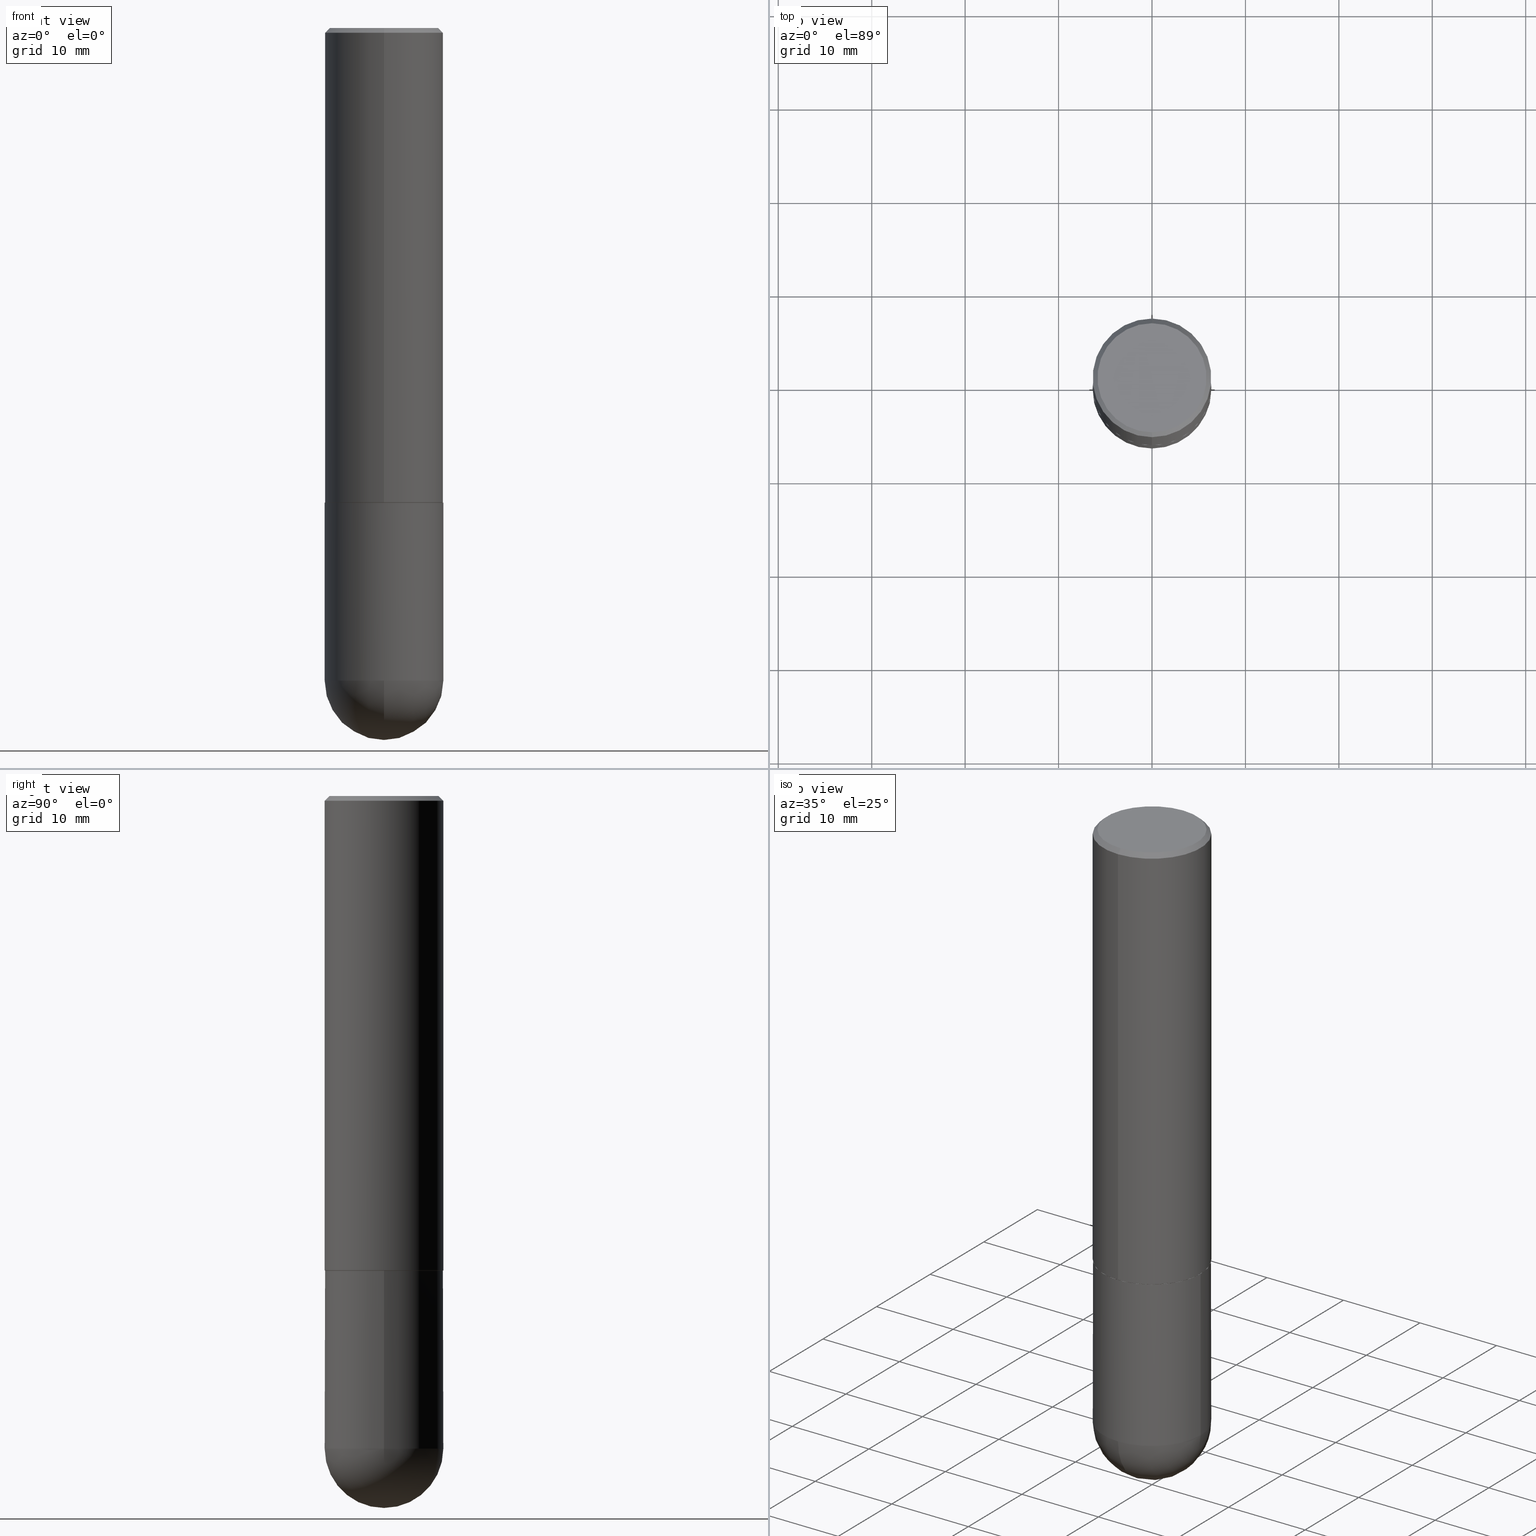
[diagram: canonical four-view strip — front | top / right | iso, engineering-drawing reading convention]
A machine part, canonical four-view strip (front | top / right | iso — engineering-drawing reading convention). The complete STEP part file that produces these views, byte-faithful:
ISO-10303-21;
HEADER;
FILE_DESCRIPTION (( 'STEP AP203' ),
    '1' );
FILE_NAME ('36543.STEP',
    '2024-02-21T19:01:13',
    ( '' ),
    ( '' ),
    'SwSTEP 2.0',
    'SolidWorks 2023',
    '' );
FILE_SCHEMA (( 'CONFIG_CONTROL_DESIGN' ));
ENDSEC;

DATA;
#1 = DIRECTION ( 'NONE',  ( -2.446170106863370175E-29, 3.490477036356359170E-15, 1.000000000000000000 ) ) ;
#2 = AXIS2_PLACEMENT_3D ( 'NONE', #264, #165, #234 ) ;
#3 = CARTESIAN_POINT ( 'NONE',  ( -0.2500000000000000000, -6.515911340352222809E-15, -2.750000000000000444 ) ) ;
#4 = DIRECTION ( 'NONE',  ( -6.982962677686266711E-15, -1.000000000000000000, 3.490477036356359170E-15 ) ) ;
#5 = EDGE_LOOP ( 'NONE', ( #300, #169, #306, #47 ) ) ;
#6 = ORIENTED_EDGE ( 'NONE', *, *, #272, .F. ) ;
#7 = CARTESIAN_POINT ( 'NONE',  ( -1.715124499442882496E-15, -0.2500000000000001110, -0.01999999999999918510 ) ) ;
#8 = AXIS2_PLACEMENT_3D ( 'NONE', #94, #36, #188 ) ;
#9 = VERTEX_POINT ( 'NONE', #376 ) ;
#10 = AXIS2_PLACEMENT_3D ( 'NONE', #152, #251, #223 ) ;
#11 = MANIFOLD_SOLID_BREP ( 'Body-Move/Copy2[1]', #338 ) ;
#12 = DATE_TIME_ROLE ( 'creation_date' ) ;
#13 = VERTEX_POINT ( 'NONE', #395 ) ;
#14 = PRODUCT ( '36543', '36543', '', ( #64 ) ) ;
#15 = ORIENTED_EDGE ( 'NONE', *, *, #185, .T. ) ;
#16 = CARTESIAN_POINT ( 'NONE',  ( 1.745740669421632745E-15, 0.2499999999999902300, -2.750000000000001332 ) ) ;
#17 = MANIFOLD_SOLID_BREP ( 'Body-Move/Copy2[2]', #201 ) ;
#18 = VERTEX_POINT ( 'NONE', #213 ) ;
#19 = PRODUCT_RELATED_PRODUCT_CATEGORY ( 'detail', '', ( #14 ) ) ;
#20 = ORIENTED_EDGE ( 'NONE', *, *, #97, .F. ) ;
#21 = DIRECTION ( 'NONE',  ( -2.445468806185136597E-29, 3.491481338843145583E-15, 1.000000000000000000 ) ) ;
#22 =( CONVERSION_BASED_UNIT ( 'INCH', #117 ) LENGTH_UNIT ( ) NAMED_UNIT ( #132 ) );
#23 = ORIENTED_EDGE ( 'NONE', *, *, #245, .T. ) ;
#24 = CIRCLE ( 'NONE', #257, 0.2500000000000000000 ) ;
#25 = APPLICATION_PROTOCOL_DEFINITION ( 'international standard', 'config_control_design', 1994, #254 ) ;
#26 = ORIENTED_EDGE ( 'NONE', *, *, #245, .F. ) ;
#27 = EDGE_CURVE ( 'NONE', #134, #9, #129, .T. ) ;
#28 = CARTESIAN_POINT ( 'NONE',  ( 1.745740669421567269E-15, 0.2499999999999999722, -0.02000000000000092676 ) ) ;
#29 = DATE_TIME_ROLE ( 'classification_date' ) ;
#30 = DIRECTION ( 'NONE',  ( 6.982962677686265922E-15, 1.000000000000000000, -4.370956789862818783E-15 ) ) ;
#31 = SHAPE_DEFINITION_REPRESENTATION ( #274, #127 ) ;
#32 = CARTESIAN_POINT ( 'NONE',  ( 1.769251412042698169E-15, 0.2489999999999930325, -2.000000000000000888 ) ) ;
#33 = CC_DESIGN_PERSON_AND_ORGANIZATION_ASSIGNMENT ( #116, #209, ( #332 ) ) ;
#34 = AXIS2_PLACEMENT_3D ( 'NONE', #322, #123, #4 ) ;
#35 = CARTESIAN_POINT ( 'NONE',  ( 1.776356839400251254E-15, 0.2500000000000001110, -8.726192590890901868E-16 ) ) ;
#36 = DIRECTION ( 'NONE',  ( -2.446170106863369615E-29, 3.490477036356359564E-15, 1.000000000000000000 ) ) ;
#37 = PLANE ( 'NONE',  #8 ) ;
#38 = EDGE_CURVE ( 'NONE', #179, #175, #279, .T. ) ;
#39 = AXIS2_PLACEMENT_3D ( 'NONE', #180, #210, #282 ) ;
#40 = VERTEX_POINT ( 'NONE', #16 ) ;
#41 = COORDINATED_UNIVERSAL_TIME_OFFSET ( 5, 0, .BEHIND. ) ;
#42 = AXIS2_PLACEMENT_3D ( 'NONE', #247, #252, #320 ) ;
#43 = EDGE_LOOP ( 'NONE', ( #141, #393, #242, #308 ) ) ;
#44 = LOCAL_TIME ( 14, 1, 13.00000000000000000, #92 ) ;
#45 = APPROVAL_STATUS ( 'not_yet_approved' ) ;
#46 = ORIENTED_EDGE ( 'NONE', *, *, #142, .T. ) ;
#47 = ORIENTED_EDGE ( 'NONE', *, *, #135, .F. ) ;
#48 = CARTESIAN_POINT ( 'NONE',  ( 0.000000000000000000, 0.000000000000000000, 0.000000000000000000 ) ) ;
#49 = FACE_OUTER_BOUND ( 'NONE', #5, .T. ) ;
#50 = CIRCLE ( 'NONE', #82, 0.2500000000000000555 ) ;
#51 = ADVANCED_FACE ( 'NONE', ( #239 ), #139, .T. ) ;
#52 = ORIENTED_EDGE ( 'NONE', *, *, #27, .F. ) ;
#53 = DIRECTION ( 'NONE',  ( -2.445468806185136597E-29, 3.491481338843145583E-15, 1.000000000000000000 ) ) ;
#54 = PERSON_AND_ORGANIZATION ( #381, #394 ) ;
#55 = DIRECTION ( 'NONE',  ( 6.982962677686265922E-15, 1.000000000000000000, -3.490477036356359564E-15 ) ) ;
#56 = VERTEX_POINT ( 'NONE', #207 ) ;
#57 = CARTESIAN_POINT ( 'NONE',  ( 6.393919439095240515E-29, -1.007575604995870173E-14, -2.750000000000000444 ) ) ;
#58 = PRODUCT_DEFINITION_FORMATION_WITH_SPECIFIED_SOURCE ( 'ANY', '', #14, .NOT_KNOWN. ) ;
#59 = APPROVAL_DATE_TIME ( #87, #404 ) ;
#60 = DIRECTION ( 'NONE',  ( -6.982962677686265922E-15, -1.000000000000000000, 3.490477036356359564E-15 ) ) ;
#61 = PERSON_AND_ORGANIZATION_ROLE ( 'design_supplier' ) ;
#62 = CARTESIAN_POINT ( 'NONE',  ( -3.440047127979384155E-45, 4.908655154645937687E-31, 1.406299226013526948E-16 ) ) ;
#63 = CYLINDRICAL_SURFACE ( 'NONE', #183, 0.2500000000000001110 ) ;
#64 = MECHANICAL_CONTEXT ( 'NONE', #254, 'mechanical' ) ;
#65 = DIRECTION ( 'NONE',  ( 1.000000000000000000, -6.982962677686270655E-15, 0.000000000000000000 ) ) ;
#66 = CONICAL_SURFACE ( 'NONE', #42, 0.2489999999999999991, 0.7853981633976704346 ) ;
#67 = DIRECTION ( 'NONE',  ( 2.438088387897960049E-29, -3.491481338843145188E-15, -1.000000000000000000 ) ) ;
#68 = DIRECTION ( 'NONE',  ( 6.982962677686266711E-15, 1.000000000000000000, 0.000000000000000000 ) ) ;
#69 = EDGE_CURVE ( 'NONE', #112, #40, #389, .T. ) ;
#70 = CC_DESIGN_PERSON_AND_ORGANIZATION_ASSIGNMENT ( #377, #89, ( #14 ) ) ;
#71 = EDGE_LOOP ( 'NONE', ( #200, #398, #86, #79 ) ) ;
#72 = CIRCLE ( 'NONE', #385, 0.2500000000000000000 ) ;
#73 = EDGE_LOOP ( 'NONE', ( #356, #52 ) ) ;
#74 = ADVANCED_FACE ( 'NONE', ( #344 ), #302, .F. ) ;
#75 = ORIENTED_EDGE ( 'NONE', *, *, #253, .F. ) ;
#76 = AXIS2_PLACEMENT_3D ( 'NONE', #204, #343, #55 ) ;
#77 = ORIENTED_EDGE ( 'NONE', *, *, #155, .T. ) ;
#78 = APPROVAL_PERSON_ORGANIZATION ( #54, #392, #349 ) ;
#79 = ORIENTED_EDGE ( 'NONE', *, *, #354, .F. ) ;
#80 = CARTESIAN_POINT ( 'NONE',  ( 6.725039217009125641E-29, -9.601573681818653015E-15, -2.750000000000000444 ) ) ;
#81 = CARTESIAN_POINT ( 'NONE',  ( 4.889894043619877987E-29, -6.977463595676361972E-15, -1.999000000000000110 ) ) ;
#82 = AXIS2_PLACEMENT_3D ( 'NONE', #285, #411, #410 ) ;
#83 = FACE_OUTER_BOUND ( 'NONE', #232, .T. ) ;
#84 = DIRECTION ( 'NONE',  ( -6.982962677686266711E-15, -1.000000000000000000, 3.278217592397113101E-15 ) ) ;
#85 = CYLINDRICAL_SURFACE ( 'NONE', #305, 0.2500000000000000000 ) ;
#86 = ORIENTED_EDGE ( 'NONE', *, *, #211, .F. ) ;
#87 = DATE_AND_TIME ( #205, #44 ) ;
#88 = UNCERTAINTY_MEASURE_WITH_UNIT (LENGTH_MEASURE( 1.000000000000000082E-05 ), #22, 'distance_accuracy_value', 'NONE');
#89 = PERSON_AND_ORGANIZATION_ROLE ( 'design_owner' ) ;
#90 = VECTOR ( 'NONE', #124, 39.37007874015748143 ) ;
#91 = LOCAL_TIME ( 14, 1, 13.00000000000000000, #379 ) ;
#92 = COORDINATED_UNIVERSAL_TIME_OFFSET ( 5, 0, .BEHIND. ) ;
#93 = CALENDAR_DATE ( 2024, 21, 2 ) ;
#94 = CARTESIAN_POINT ( 'NONE',  ( 4.892340213726740351E-29, -6.980954072712719128E-15, -2.000000000000000000 ) ) ;
#95 = ADVANCED_FACE ( 'NONE', ( #49 ), #297, .T. ) ;
#96 = CARTESIAN_POINT ( 'NONE',  ( 1.745740669421567269E-15, 0.2499999999999999722, -0.02000000000000092676 ) ) ;
#97 = EDGE_CURVE ( 'NONE', #334, #311, #136, .T. ) ;
#98 = PLANE ( 'NONE',  #304 ) ;
#99 = CIRCLE ( 'NONE', #331, 0.2299999999999998712 ) ;
#100 = DIRECTION ( 'NONE',  ( -2.446170106863370175E-29, 3.490477036356359564E-15, 1.000000000000000000 ) ) ;
#101 = EDGE_CURVE ( 'NONE', #311, #112, #270, .T. ) ;
#102 = CC_DESIGN_DATE_AND_TIME_ASSIGNMENT ( #199, #12, ( #412 ) ) ;
#103 = ORIENTED_EDGE ( 'NONE', *, *, #253, .T. ) ;
#104 = ORIENTED_EDGE ( 'NONE', *, *, #182, .F. ) ;
#105 = VECTOR ( 'NONE', #100, 39.37007874015748143 ) ;
#106 = EDGE_LOOP ( 'NONE', ( #103, #267 ) ) ;
#107 = CARTESIAN_POINT ( 'NONE',  ( 6.393919439095240515E-29, -1.007575604995870173E-14, -2.750000000000000444 ) ) ;
#108 = DIRECTION ( 'NONE',  ( -6.982962677686265133E-15, -1.000000000000000000, 3.291383124896702687E-15 ) ) ;
#109 = EDGE_LOOP ( 'NONE', ( #166, #277 ) ) ;
#110 = DIRECTION ( 'NONE',  ( -2.446170106863370175E-29, 3.490477036356359170E-15, 1.000000000000000000 ) ) ;
#111 = COORDINATED_UNIVERSAL_TIME_OFFSET ( 5, 0, .BEHIND. ) ;
#112 = VERTEX_POINT ( 'NONE', #120 ) ;
#113 = DIRECTION ( 'NONE',  ( 6.982962677686265133E-15, 1.000000000000000000, -3.483106191921934765E-15 ) ) ;
#114 = ORIENTED_EDGE ( 'NONE', *, *, #69, .F. ) ;
#115 = DIRECTION ( 'NONE',  ( -2.445468806185136597E-29, 3.491481338843145583E-15, 1.000000000000000000 ) ) ;
#116 = PERSON_AND_ORGANIZATION ( #381, #394 ) ;
#117 = LENGTH_MEASURE_WITH_UNIT ( LENGTH_MEASURE( 0.02539999999999999897 ), #276 );
#118 = CIRCLE ( 'NONE', #345, 0.2500000000000000555 ) ;
#119 = CARTESIAN_POINT ( 'NONE',  ( -1.776356839400184989E-15, -0.2500000000000098810, -2.749999999999999556 ) ) ;
#120 = CARTESIAN_POINT ( 'NONE',  ( 0.2500000000000000000, -1.003800884917404153E-14, -2.750000000000000444 ) ) ;
#121 = DIRECTION ( 'NONE',  ( 1.000000000000000000, -6.982962677686266711E-15, 4.876176775795935793E-29 ) ) ;
#122 = CARTESIAN_POINT ( 'NONE',  ( 6.393919439095240515E-29, -1.007575604995870173E-14, -2.750000000000000444 ) ) ;
#123 = DIRECTION ( 'NONE',  ( -2.446170106863370175E-29, 3.490477036356359170E-15, 1.000000000000000000 ) ) ;
#124 = DIRECTION ( 'NONE',  ( -2.445468806185136877E-29, 3.491481338843145188E-15, 1.000000000000000000 ) ) ;
#125 = AXIS2_PLACEMENT_3D ( 'NONE', #48, #368, #121 ) ;
#126 = DIRECTION ( 'NONE',  ( -2.446170106863370175E-29, 3.490477036356359170E-15, 1.000000000000000000 ) ) ;
#127 = ADVANCED_BREP_SHAPE_REPRESENTATION ( '36543', ( #11, #17, #10 ), #371 ) ;
#128 = ORIENTED_EDGE ( 'NONE', *, *, #258, .T. ) ;
#129 = CIRCLE ( 'NONE', #215, 0.2489999999999999991 ) ;
#130 = AXIS2_PLACEMENT_3D ( 'NONE', #291, #208, #113 ) ;
#131 = ORIENTED_EDGE ( 'NONE', *, *, #69, .T. ) ;
#132 = DIMENSIONAL_EXPONENTS ( 1.000000000000000000, 0.000000000000000000, 0.000000000000000000, 0.000000000000000000, 0.000000000000000000, 0.000000000000000000, 0.000000000000000000 ) ;
#133 = ORIENTED_EDGE ( 'NONE', *, *, #325, .T. ) ;
#134 = VERTEX_POINT ( 'NONE', #221 ) ;
#135 = EDGE_CURVE ( 'NONE', #18, #328, #192, .T. ) ;
#136 = CIRCLE ( 'NONE', #228, 0.2500000000000001110 ) ;
#137 = CC_DESIGN_APPROVAL ( #404, ( #58 ) ) ;
#138 = CARTESIAN_POINT ( 'NONE',  ( 4.892340213726740351E-29, -6.980954072712719128E-15, -2.000000000000000000 ) ) ;
#139 = SPHERICAL_SURFACE ( 'NONE', #39, 0.2500000000000001110 ) ;
#140 = CC_DESIGN_PERSON_AND_ORGANIZATION_ASSIGNMENT ( #405, #219, ( #58 ) ) ;
#141 = ORIENTED_EDGE ( 'NONE', *, *, #303, .T. ) ;
#142 = EDGE_CURVE ( 'NONE', #334, #40, #206, .T. ) ;
#143 = DIRECTION ( 'NONE',  ( 1.000000000000000000, -6.982962677686270655E-15, 0.000000000000000000 ) ) ;
#144 = APPROVAL_STATUS ( 'not_yet_approved' ) ;
#145 = EDGE_LOOP ( 'NONE', ( #301, #77, #6, #237 ) ) ;
#146 = AXIS2_PLACEMENT_3D ( 'NONE', #122, #216, #68 ) ;
#147 = CARTESIAN_POINT ( 'NONE',  ( 7.015976219256266741E-29, -1.093331829968014633E-14, -3.000000000000000888 ) ) ;
#148 = CARTESIAN_POINT ( 'NONE',  ( 4.892340213726740351E-29, -6.980954072712719128E-15, -2.000000000000000000 ) ) ;
#149 = EDGE_LOOP ( 'NONE', ( #261, #329, #128, #104 ) ) ;
#150 = DIRECTION ( 'NONE',  ( -6.982962677686266711E-15, -1.000000000000000000, 3.490477036356359170E-15 ) ) ;
#151 = APPROVAL_STATUS ( 'not_yet_approved' ) ;
#152 = CARTESIAN_POINT ( 'NONE',  ( 0.000000000000000000, 0.000000000000000000, 0.000000000000000000 ) ) ;
#153 = CARTESIAN_POINT ( 'NONE',  ( 4.890937612370273754E-29, -6.982962677686291954E-15, -2.000000000000000444 ) ) ;
#154 = DIRECTION ( 'NONE',  ( -1.000000000000000000, 6.982962677686265922E-15, -4.883557194083113462E-29 ) ) ;
#155 = EDGE_CURVE ( 'NONE', #175, #328, #380, .T. ) ;
#156 = DIRECTION ( 'NONE',  ( 5.024295867789177050E-15, 0.7071067811867068897, 0.7071067811863879227 ) ) ;
#157 = DIRECTION ( 'NONE',  ( -2.446170106863370175E-29, 3.490477036356359170E-15, 1.000000000000000000 ) ) ;
#158 = DIRECTION ( 'NONE',  ( -6.982962677686265922E-15, -1.000000000000000000, 3.490477036356359564E-15 ) ) ;
#159 = LINE ( 'NONE', #383, #90 ) ;
#160 = CIRCLE ( 'NONE', #240, 0.2500000000000002220 ) ;
#161 = ORIENTED_EDGE ( 'NONE', *, *, #182, .T. ) ;
#162 = DIRECTION ( 'NONE',  ( -6.982962677686265133E-15, -1.000000000000000000, 3.483106191921934765E-15 ) ) ;
#163 = AXIS2_PLACEMENT_3D ( 'NONE', #403, #203, #271 ) ;
#164 = LOCAL_TIME ( 14, 1, 13.00000000000000000, #177 ) ;
#165 = DIRECTION ( 'NONE',  ( -2.446170106863370175E-29, 3.490477036356359170E-15, 1.000000000000000000 ) ) ;
#166 = ORIENTED_EDGE ( 'NONE', *, *, #173, .T. ) ;
#167 = CC_DESIGN_PERSON_AND_ORGANIZATION_ASSIGNMENT ( #174, #61, ( #58 ) ) ;
#168 = ORIENTED_EDGE ( 'NONE', *, *, #317, .F. ) ;
#169 = ORIENTED_EDGE ( 'NONE', *, *, #293, .T. ) ;
#170 = FACE_OUTER_BOUND ( 'NONE', #145, .T. ) ;
#171 = CC_DESIGN_APPROVAL ( #392, ( #332 ) ) ;
#172 = ORIENTED_EDGE ( 'NONE', *, *, #135, .T. ) ;
#173 = EDGE_CURVE ( 'NONE', #268, #13, #72, .T. ) ;
#174 = PERSON_AND_ORGANIZATION ( #381, #394 ) ;
#175 = VERTEX_POINT ( 'NONE', #193 ) ;
#176 = DIRECTION ( 'NONE',  ( 1.000000000000000000, -6.982962677686266711E-15, 4.876176775795935793E-29 ) ) ;
#177 = COORDINATED_UNIVERSAL_TIME_OFFSET ( 5, 0, .BEHIND. ) ;
#178 = DATE_AND_TIME ( #93, #91 ) ;
#179 = VERTEX_POINT ( 'NONE', #227 ) ;
#180 = CARTESIAN_POINT ( 'NONE',  ( 6.393919439095240515E-29, -1.007575604995870173E-14, -2.750000000000000444 ) ) ;
#181 = VECTOR ( 'NONE', #184, 39.37007874015748143 ) ;
#182 = EDGE_CURVE ( 'NONE', #175, #179, #160, .T. ) ;
#183 = AXIS2_PLACEMENT_3D ( 'NONE', #375, #110, #150 ) ;
#184 = DIRECTION ( 'NONE',  ( -4.937700262165644559E-15, -0.7071067811867021158, 0.7071067811863929187 ) ) ;
#185 = EDGE_CURVE ( 'NONE', #328, #402, #50, .T. ) ;
#186 = APPROVAL_DATE_TIME ( #284, #392 ) ;
#187 = PERSON_AND_ORGANIZATION ( #381, #394 ) ;
#188 = DIRECTION ( 'NONE',  ( -6.982962677686265922E-15, -1.000000000000000000, 3.490477036356359564E-15 ) ) ;
#189 = CARTESIAN_POINT ( 'NONE',  ( 4.889894043619877987E-29, -6.977463595676361972E-15, -1.999000000000000110 ) ) ;
#190 = VECTOR ( 'NONE', #275, 39.37007874015748143 ) ;
#191 = ADVANCED_FACE ( 'NONE', ( #256 ), #37, .F. ) ;
#192 = LINE ( 'NONE', #96, #292 ) ;
#193 = CARTESIAN_POINT ( 'NONE',  ( 1.776356839400276497E-15, 0.2499999999999933109, -1.999000000000000998 ) ) ;
#194 = ORIENTED_EDGE ( 'NONE', *, *, #293, .F. ) ;
#195 = AXIS2_PLACEMENT_3D ( 'NONE', #80, #115, #65 ) ;
#196 = APPROVAL_PERSON_ORGANIZATION ( #333, #404, #235 ) ;
#197 = DIRECTION ( 'NONE',  ( -2.446170106863370175E-29, 3.490477036356359170E-15, 1.000000000000000000 ) ) ;
#198 = EDGE_LOOP ( 'NONE', ( #294, #161, #133, #313 ) ) ;
#199 = DATE_AND_TIME ( #299, #298 ) ;
#200 = ORIENTED_EDGE ( 'NONE', *, *, #142, .F. ) ;
#201 = CLOSED_SHELL ( 'NONE', ( #373, #360, #95, #364, #330, #226, #191, #74 ) ) ;
#202 = ORIENTED_EDGE ( 'NONE', *, *, #211, .T. ) ;
#203 = DIRECTION ( 'NONE',  ( 2.446170106863370175E-29, -3.490477036356359170E-15, -1.000000000000000000 ) ) ;
#204 = CARTESIAN_POINT ( 'NONE',  ( 1.606081415867840278E-15, 0.2299999999999998712, -7.324947570612858819E-16 ) ) ;
#205 = CALENDAR_DATE ( 2024, 21, 2 ) ;
#206 = CIRCLE ( 'NONE', #146, 0.2500000000000001110 ) ;
#207 = CARTESIAN_POINT ( 'NONE',  ( -1.646519519465166770E-15, -0.2299999999999998712, 9.434396409633149982E-16 ) ) ;
#208 = DIRECTION ( 'NONE',  ( 2.446170106863370175E-29, -3.490477036356359170E-15, -1.000000000000000000 ) ) ;
#209 = PERSON_AND_ORGANIZATION_ROLE ( 'classification_officer' ) ;
#210 = DIRECTION ( 'NONE',  ( -1.000000000000000000, 6.982962677686265922E-15, -4.883557194083113462E-29 ) ) ;
#211 = EDGE_CURVE ( 'NONE', #280, #311, #399, .T. ) ;
#212 = FACE_OUTER_BOUND ( 'NONE', #43, .T. ) ;
#213 = CARTESIAN_POINT ( 'NONE',  ( 1.675911042644703774E-15, 0.2299999999999998712, -6.621797957606095099E-16 ) ) ;
#214 = EDGE_CURVE ( 'NONE', #56, #18, #286, .T. ) ;
#215 = AXIS2_PLACEMENT_3D ( 'NONE', #138, #374, #337 ) ;
#216 = DIRECTION ( 'NONE',  ( 1.000000000000000000, -6.982962677686265922E-15, 4.883557194083112340E-29 ) ) ;
#217 = CIRCLE ( 'NONE', #409, 0.2500000000000000000 ) ;
#218 = SPHERICAL_SURFACE ( 'NONE', #347, 0.2500000000000001110 ) ;
#219 = PERSON_AND_ORGANIZATION_ROLE ( 'creator' ) ;
#220 = APPROVAL_DATE_TIME ( #178, #288 ) ;
#221 = CARTESIAN_POINT ( 'NONE',  ( 1.772804125721499659E-15, 0.2489999999999930325, -2.000000000000000888 ) ) ;
#222 = FACE_OUTER_BOUND ( 'NONE', #71, .T. ) ;
#223 = DIRECTION ( 'NONE',  ( 1.000000000000000000, 0.000000000000000000, 0.000000000000000000 ) ) ;
#224 = CARTESIAN_POINT ( 'NONE',  ( -3.440047127979384155E-45, 4.908655154645937687E-31, 1.406299226013526948E-16 ) ) ;
#225 = EDGE_CURVE ( 'NONE', #134, #175, #350, .T. ) ;
#226 = ADVANCED_FACE ( 'NONE', ( #287 ), #66, .T. ) ;
#227 = CARTESIAN_POINT ( 'NONE',  ( -1.745740669421519149E-15, -0.2500000000000072164, -1.998999999999999444 ) ) ;
#228 = AXIS2_PLACEMENT_3D ( 'NONE', #107, #238, #366 ) ;
#229 = CONICAL_SURFACE ( 'NONE', #130, 0.2500000000000000555, 0.7853981633974473908 ) ;
#230 = PERSON_AND_ORGANIZATION_ROLE ( 'creator' ) ;
#231 = DIRECTION ( 'NONE',  ( 1.000000000000000000, -6.982962677686266711E-15, 0.000000000000000000 ) ) ;
#232 = EDGE_LOOP ( 'NONE', ( #168, #202, #365, #23, #266 ) ) ;
#233 = DIRECTION ( 'NONE',  ( -4.851104656540959542E-15, -0.7071067811865493491, -0.7071067811865456854 ) ) ;
#234 = DIRECTION ( 'NONE',  ( -6.982962677686265133E-15, -1.000000000000000000, 3.291383124896702687E-15 ) ) ;
#235 = APPROVAL_ROLE ( '' ) ;
#236 = APPROVAL_PERSON_ORGANIZATION ( #307, #288, #342 ) ;
#237 = ORIENTED_EDGE ( 'NONE', *, *, #325, .F. ) ;
#238 = DIRECTION ( 'NONE',  ( -1.000000000000000000, 7.105427357601001070E-15, -4.926315508542082329E-29 ) ) ;
#239 = FACE_OUTER_BOUND ( 'NONE', #391, .T. ) ;
#240 = AXIS2_PLACEMENT_3D ( 'NONE', #189, #323, #355 ) ;
#241 = CC_DESIGN_SECURITY_CLASSIFICATION ( #332, ( #58 ) ) ;
#242 = ORIENTED_EDGE ( 'NONE', *, *, #38, .F. ) ;
#243 = CARTESIAN_POINT ( 'NONE',  ( -1.715124499442882496E-15, -0.2500000000000001110, -0.01999999999999918510 ) ) ;
#244 = ORIENTED_EDGE ( 'NONE', *, *, #317, .T. ) ;
#245 = EDGE_CURVE ( 'NONE', #112, #268, #159, .T. ) ;
#246 =( NAMED_UNIT ( * ) PLANE_ANGLE_UNIT ( ) SI_UNIT ( $, .RADIAN. ) );
#247 = CARTESIAN_POINT ( 'NONE',  ( 4.892340213726740351E-29, -6.980954072712719128E-15, -2.000000000000000000 ) ) ;
#248 = CYLINDRICAL_SURFACE ( 'NONE', #34, 0.2500000000000001110 ) ;
#249 = CALENDAR_DATE ( 2024, 21, 2 ) ;
#250 = APPLICATION_PROTOCOL_DEFINITION ( 'international standard', 'config_control_design', 1994, #408 ) ;
#251 = DIRECTION ( 'NONE',  ( 0.000000000000000000, 0.000000000000000000, 1.000000000000000000 ) ) ;
#252 = DIRECTION ( 'NONE',  ( -2.446170106863370175E-29, 3.490477036356359170E-15, 1.000000000000000000 ) ) ;
#253 = EDGE_CURVE ( 'NONE', #18, #56, #99, .T. ) ;
#254 = APPLICATION_CONTEXT ( 'configuration controlled 3d designs of mechanical parts and assemblies' ) ;
#255 = CARTESIAN_POINT ( 'NONE',  ( 6.725039217009125641E-29, -9.601573681818653015E-15, -2.750000000000000444 ) ) ;
#256 = FACE_OUTER_BOUND ( 'NONE', #73, .T. ) ;
#257 = AXIS2_PLACEMENT_3D ( 'NONE', #316, #386, #231 ) ;
#258 = EDGE_CURVE ( 'NONE', #9, #179, #378, .T. ) ;
#259 = ADVANCED_FACE ( 'NONE', ( #384 ), #98, .F. ) ;
#260 = EDGE_LOOP ( 'NONE', ( #194, #75, #172, #15 ) ) ;
#261 = ORIENTED_EDGE ( 'NONE', *, *, #225, .F. ) ;
#262 = AXIS2_PLACEMENT_3D ( 'NONE', #81, #336, #84 ) ;
#263 = CONICAL_SURFACE ( 'NONE', #363, 0.2489999999999999991, 0.7853981633976704346 ) ;
#264 = CARTESIAN_POINT ( 'NONE',  ( 4.892340213726740351E-29, -6.980954072712719128E-15, -2.000000000000000000 ) ) ;
#265 = EDGE_CURVE ( 'NONE', #13, #268, #24, .T. ) ;
#266 = ORIENTED_EDGE ( 'NONE', *, *, #265, .F. ) ;
#267 = ORIENTED_EDGE ( 'NONE', *, *, #214, .T. ) ;
#268 = VERTEX_POINT ( 'NONE', #388 ) ;
#269 = FACE_OUTER_BOUND ( 'NONE', #260, .T. ) ;
#270 = CIRCLE ( 'NONE', #195, 0.2500000000000000000 ) ;
#271 = DIRECTION ( 'NONE',  ( 6.982962677686265133E-15, 1.000000000000000000, -3.483106191921934765E-15 ) ) ;
#272 = EDGE_CURVE ( 'NONE', #402, #328, #118, .T. ) ;
#273 = CARTESIAN_POINT ( 'NONE',  ( 6.725039217009125641E-29, -9.601573681818653015E-15, -2.750000000000000444 ) ) ;
#274 = PRODUCT_DEFINITION_SHAPE ( 'NONE', 'NONE',  #412 ) ;
#275 = DIRECTION ( 'NONE',  ( -2.445468806185136877E-29, 3.491481338843145188E-15, 1.000000000000000000 ) ) ;
#276 =( LENGTH_UNIT ( ) NAMED_UNIT ( * ) SI_UNIT ( $, .METRE. ) );
#277 = ORIENTED_EDGE ( 'NONE', *, *, #265, .T. ) ;
#278 = FACE_OUTER_BOUND ( 'NONE', #357, .T. ) ;
#279 = CIRCLE ( 'NONE', #262, 0.2500000000000002220 ) ;
#280 = VERTEX_POINT ( 'NONE', #3 ) ;
#281 = DIRECTION ( 'NONE',  ( -2.446170106863370175E-29, 3.490477036356359564E-15, 1.000000000000000000 ) ) ;
#282 = DIRECTION ( 'NONE',  ( 6.982962677686265922E-15, 1.000000000000000000, -4.370956789862818783E-15 ) ) ;
#283 = CARTESIAN_POINT ( 'NONE',  ( 0.000000000000000000, 0.000000000000000000, 0.000000000000000000 ) ) ;
#284 = DATE_AND_TIME ( #249, #164 ) ;
#285 = CARTESIAN_POINT ( 'NONE',  ( 4.892340213726754154E-31, -6.980954072712737814E-17, -0.02000000000000005593 ) ) ;
#286 = CIRCLE ( 'NONE', #369, 0.2299999999999998712 ) ;
#287 = FACE_OUTER_BOUND ( 'NONE', #149, .T. ) ;
#288 = APPROVAL ( #144, 'UNSPECIFIED' ) ;
#289 = CARTESIAN_POINT ( 'NONE',  ( -1.738757706743831162E-15, -0.2490000000000069658, -1.999999999999999112 ) ) ;
#290 = DIRECTION ( 'NONE',  ( -1.000000000000000000, 6.982962677686265922E-15, -4.876176775795935793E-29 ) ) ;
#291 = CARTESIAN_POINT ( 'NONE',  ( 4.892340213726754154E-31, -6.980954072712737814E-17, -0.02000000000000005593 ) ) ;
#292 = VECTOR ( 'NONE', #351, 39.37007874015748143 ) ;
#293 = EDGE_CURVE ( 'NONE', #56, #402, #295, .T. ) ;
#294 = ORIENTED_EDGE ( 'NONE', *, *, #155, .F. ) ;
#295 = LINE ( 'NONE', #7, #312 ) ;
#296 = ORIENTED_EDGE ( 'NONE', *, *, #101, .F. ) ;
#297 = CONICAL_SURFACE ( 'NONE', #163, 0.2500000000000000555, 0.7853981633974473908 ) ;
#298 = LOCAL_TIME ( 14, 1, 13.00000000000000000, #41 ) ;
#299 = CALENDAR_DATE ( 2024, 21, 2 ) ;
#300 = ORIENTED_EDGE ( 'NONE', *, *, #214, .F. ) ;
#301 = ORIENTED_EDGE ( 'NONE', *, *, #38, .T. ) ;
#302 = PLANE ( 'NONE',  #76 ) ;
#303 = EDGE_CURVE ( 'NONE', #9, #134, #407, .T. ) ;
#304 = AXIS2_PLACEMENT_3D ( 'NONE', #353, #67, #290 ) ;
#305 = AXIS2_PLACEMENT_3D ( 'NONE', #283, #53, #176 ) ;
#306 = ORIENTED_EDGE ( 'NONE', *, *, #272, .T. ) ;
#307 = PERSON_AND_ORGANIZATION ( #381, #394 ) ;
#308 = ORIENTED_EDGE ( 'NONE', *, *, #258, .F. ) ;
#309 = CARTESIAN_POINT ( 'NONE',  ( 6.725039217009125641E-29, -9.601573681818653015E-15, -2.750000000000000444 ) ) ;
#310 = ADVANCED_FACE ( 'NONE', ( #222 ), #218, .T. ) ;
#311 = VERTEX_POINT ( 'NONE', #119 ) ;
#312 = VECTOR ( 'NONE', #233, 39.37007874015748143 ) ;
#313 = ORIENTED_EDGE ( 'NONE', *, *, #185, .F. ) ;
#314 = LINE ( 'NONE', #339, #190 ) ;
#315 = SECURITY_CLASSIFICATION_LEVEL ( 'unclassified' ) ;
#316 = CARTESIAN_POINT ( 'NONE',  ( 4.890937612370273754E-29, -6.982962677686291954E-15, -2.000000000000000444 ) ) ;
#317 = EDGE_CURVE ( 'NONE', #280, #13, #314, .T. ) ;
#318 = DIRECTION ( 'NONE',  ( 1.000000000000000000, -6.982962677686270655E-15, 0.000000000000000000 ) ) ;
#319 = AXIS2_PLACEMENT_3D ( 'NONE', #255, #348, #318 ) ;
#320 = DIRECTION ( 'NONE',  ( -6.982962677686265133E-15, -1.000000000000000000, 3.291383124896702687E-15 ) ) ;
#321 = DIRECTION ( 'NONE',  ( 1.000000000000000000, -6.982962677686266711E-15, 0.000000000000000000 ) ) ;
#322 = CARTESIAN_POINT ( 'NONE',  ( 0.000000000000000000, 0.000000000000000000, 0.000000000000000000 ) ) ;
#323 = DIRECTION ( 'NONE',  ( -2.446170106863370175E-29, 3.490477036356359170E-15, 1.000000000000000000 ) ) ;
#324 = CC_DESIGN_PERSON_AND_ORGANIZATION_ASSIGNMENT ( #187, #230, ( #412 ) ) ;
#325 = EDGE_CURVE ( 'NONE', #179, #402, #397, .T. ) ;
#326 = ORIENTED_EDGE ( 'NONE', *, *, #354, .T. ) ;
#327 = CARTESIAN_POINT ( 'NONE',  ( 4.892340213726754154E-31, -6.980954072712737814E-17, -0.02000000000000005593 ) ) ;
#328 = VERTEX_POINT ( 'NONE', #28 ) ;
#329 = ORIENTED_EDGE ( 'NONE', *, *, #27, .T. ) ;
#330 = ADVANCED_FACE ( 'NONE', ( #370 ), #63, .T. ) ;
#331 = AXIS2_PLACEMENT_3D ( 'NONE', #224, #157, #60 ) ;
#332 = SECURITY_CLASSIFICATION ( '', '', #315 ) ;
#333 = PERSON_AND_ORGANIZATION ( #381, #394 ) ;
#334 = VERTEX_POINT ( 'NONE', #147 ) ;
#335 = CC_DESIGN_DATE_AND_TIME_ASSIGNMENT ( #341, #29, ( #332 ) ) ;
#336 = DIRECTION ( 'NONE',  ( -2.446170106863370175E-29, 3.490477036356359170E-15, 1.000000000000000000 ) ) ;
#337 = DIRECTION ( 'NONE',  ( -6.982962677686265133E-15, -1.000000000000000000, 3.291383124896702687E-15 ) ) ;
#338 = CLOSED_SHELL ( 'NONE', ( #359, #310, #51, #259, #340 ) ) ;
#339 = CARTESIAN_POINT ( 'NONE',  ( -0.2500000000000000000, 1.776356839400250465E-15, -1.229733772563726445E-29 ) ) ;
#340 = ADVANCED_FACE ( 'NONE', ( #83 ), #85, .T. ) ;
#341 = DATE_AND_TIME ( #372, #390 ) ;
#342 = APPROVAL_ROLE ( '' ) ;
#343 = DIRECTION ( 'NONE',  ( 2.446170106863369615E-29, -3.490477036356359564E-15, -1.000000000000000000 ) ) ;
#344 = FACE_OUTER_BOUND ( 'NONE', #106, .T. ) ;
#345 = AXIS2_PLACEMENT_3D ( 'NONE', #327, #126, #162 ) ;
#346 = DESIGN_CONTEXT ( 'detailed design', #408, 'design' ) ;
#347 = AXIS2_PLACEMENT_3D ( 'NONE', #57, #154, #30 ) ;
#348 = DIRECTION ( 'NONE',  ( -2.445468806185136597E-29, 3.491481338843145583E-15, 1.000000000000000000 ) ) ;
#349 = APPROVAL_ROLE ( '' ) ;
#350 = LINE ( 'NONE', #32, #362 ) ;
#351 = DIRECTION ( 'NONE',  ( 4.937700262164543309E-15, 0.7071067811865444641, -0.7071067811865505703 ) ) ;
#352 = AXIS2_PLACEMENT_3D ( 'NONE', #273, #367, #396 ) ;
#353 = CARTESIAN_POINT ( 'NONE',  ( 1.745740669421615390E-15, 0.2499999999999930334, -2.000000000000000888 ) ) ;
#354 = EDGE_CURVE ( 'NONE', #40, #280, #217, .T. ) ;
#355 = DIRECTION ( 'NONE',  ( -6.982962677686266711E-15, -1.000000000000000000, 3.278217592397113101E-15 ) ) ;
#356 = ORIENTED_EDGE ( 'NONE', *, *, #303, .F. ) ;
#357 = EDGE_LOOP ( 'NONE', ( #326, #244, #361, #26, #131 ) ) ;
#358 = CC_DESIGN_APPROVAL ( #288, ( #412 ) ) ;
#359 = ADVANCED_FACE ( 'NONE', ( #278 ), #387, .T. ) ;
#360 = ADVANCED_FACE ( 'NONE', ( #170 ), #248, .T. ) ;
#361 = ORIENTED_EDGE ( 'NONE', *, *, #173, .F. ) ;
#362 = VECTOR ( 'NONE', #156, 39.37007874015748854 ) ;
#363 = AXIS2_PLACEMENT_3D ( 'NONE', #148, #197, #108 ) ;
#364 = ADVANCED_FACE ( 'NONE', ( #269 ), #229, .T. ) ;
#365 = ORIENTED_EDGE ( 'NONE', *, *, #101, .T. ) ;
#366 = DIRECTION ( 'NONE',  ( -7.105427357601001859E-15, -1.000000000000000000, 0.000000000000000000 ) ) ;
#367 = DIRECTION ( 'NONE',  ( -2.445468806185136597E-29, 3.491481338843145583E-15, 1.000000000000000000 ) ) ;
#368 = DIRECTION ( 'NONE',  ( -2.445468806185136597E-29, 3.491481338843145583E-15, 1.000000000000000000 ) ) ;
#369 = AXIS2_PLACEMENT_3D ( 'NONE', #62, #1, #158 ) ;
#370 = FACE_OUTER_BOUND ( 'NONE', #198, .T. ) ;
#371 =( GEOMETRIC_REPRESENTATION_CONTEXT ( 3 ) GLOBAL_UNCERTAINTY_ASSIGNED_CONTEXT ( ( #88 ) ) GLOBAL_UNIT_ASSIGNED_CONTEXT ( ( #22, #246, #382 ) ) REPRESENTATION_CONTEXT ( 'NONE', 'WORKASPACE' ) );
#372 = CALENDAR_DATE ( 2024, 21, 2 ) ;
#373 = ADVANCED_FACE ( 'NONE', ( #212 ), #263, .T. ) ;
#374 = DIRECTION ( 'NONE',  ( -2.446170106863370175E-29, 3.490477036356359170E-15, 1.000000000000000000 ) ) ;
#375 = CARTESIAN_POINT ( 'NONE',  ( 0.000000000000000000, 0.000000000000000000, 0.000000000000000000 ) ) ;
#376 = CARTESIAN_POINT ( 'NONE',  ( -1.738757706743831162E-15, -0.2490000000000069658, -1.999999999999999112 ) ) ;
#377 = PERSON_AND_ORGANIZATION ( #381, #394 ) ;
#378 = LINE ( 'NONE', #289, #181 ) ;
#379 = COORDINATED_UNIVERSAL_TIME_OFFSET ( 5, 0, .BEHIND. ) ;
#380 = LINE ( 'NONE', #35, #105 ) ;
#381 = PERSON ( 'UNSPECIFIED', 'UNSPECIFIED', 'UNSPECIFIED', ('UNSPECIFIED'), ('UNSPECIFIED'), ('UNSPECIFIED') ) ;
#382 =( NAMED_UNIT ( * ) SI_UNIT ( $, .STERADIAN. ) SOLID_ANGLE_UNIT ( ) );
#383 = CARTESIAN_POINT ( 'NONE',  ( 0.2500000000000000000, -1.745740669421566678E-15, 1.219044193948983948E-29 ) ) ;
#384 = FACE_OUTER_BOUND ( 'NONE', #109, .T. ) ;
#385 = AXIS2_PLACEMENT_3D ( 'NONE', #153, #406, #321 ) ;
#386 = DIRECTION ( 'NONE',  ( -2.445468806185136597E-29, 3.491481338843145583E-15, 1.000000000000000000 ) ) ;
#387 = CYLINDRICAL_SURFACE ( 'NONE', #125, 0.2500000000000000000 ) ;
#388 = CARTESIAN_POINT ( 'NONE',  ( 0.2500000000000000000, -8.728703347107858632E-15, -2.000000000000000444 ) ) ;
#389 = CIRCLE ( 'NONE', #352, 0.2500000000000000000 ) ;
#390 = LOCAL_TIME ( 14, 1, 13.00000000000000000, #111 ) ;
#391 = EDGE_LOOP ( 'NONE', ( #20, #46, #114, #296 ) ) ;
#392 = APPROVAL ( #151, 'UNSPECIFIED' ) ;
#393 = ORIENTED_EDGE ( 'NONE', *, *, #225, .T. ) ;
#394 = ORGANIZATION ( 'UNSPECIFIED', 'UNSPECIFIED', '' ) ;
#395 = CARTESIAN_POINT ( 'NONE',  ( -0.2500000000000000000, -6.515911340352221231E-15, -2.000000000000000444 ) ) ;
#396 = DIRECTION ( 'NONE',  ( 1.000000000000000000, -6.982962677686270655E-15, 0.000000000000000000 ) ) ;
#397 = LINE ( 'NONE', #400, #401 ) ;
#398 = ORIENTED_EDGE ( 'NONE', *, *, #97, .T. ) ;
#399 = CIRCLE ( 'NONE', #319, 0.2500000000000000000 ) ;
#400 = CARTESIAN_POINT ( 'NONE',  ( -1.745740669421567467E-15, -0.2500000000000001110, 8.726192590890901868E-16 ) ) ;
#401 = VECTOR ( 'NONE', #281, 39.37007874015748143 ) ;
#402 = VERTEX_POINT ( 'NONE', #243 ) ;
#403 = CARTESIAN_POINT ( 'NONE',  ( 4.892340213726754154E-31, -6.980954072712737814E-17, -0.02000000000000005593 ) ) ;
#404 = APPROVAL ( #45, 'UNSPECIFIED' ) ;
#405 = PERSON_AND_ORGANIZATION ( #381, #394 ) ;
#406 = DIRECTION ( 'NONE',  ( -2.445468806185136597E-29, 3.491481338843145583E-15, 1.000000000000000000 ) ) ;
#407 = CIRCLE ( 'NONE', #2, 0.2489999999999999991 ) ;
#408 = APPLICATION_CONTEXT ( 'configuration controlled 3d designs of mechanical parts and assemblies' ) ;
#409 = AXIS2_PLACEMENT_3D ( 'NONE', #309, #21, #143 ) ;
#410 = DIRECTION ( 'NONE',  ( -6.982962677686265133E-15, -1.000000000000000000, 3.483106191921934765E-15 ) ) ;
#411 = DIRECTION ( 'NONE',  ( -2.446170106863370175E-29, 3.490477036356359170E-15, 1.000000000000000000 ) ) ;
#412 = PRODUCT_DEFINITION ( 'UNKNOWN', '', #58, #346 ) ;
ENDSEC;
END-ISO-10303-21;
